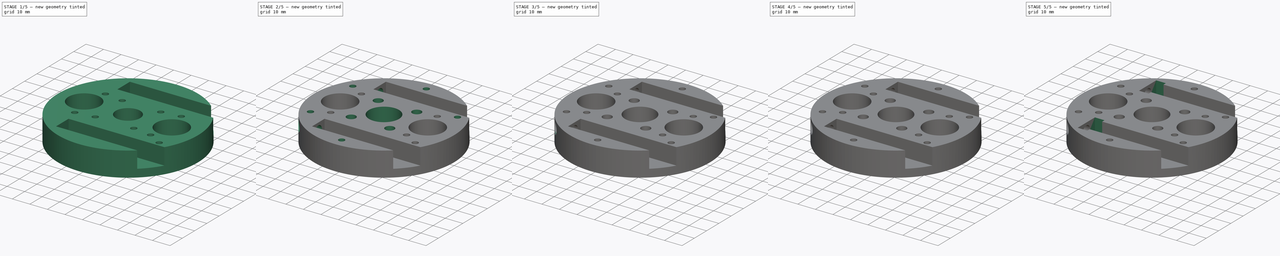
[diagram: build sequence overview — one tinted view per stage of 5, left to right]
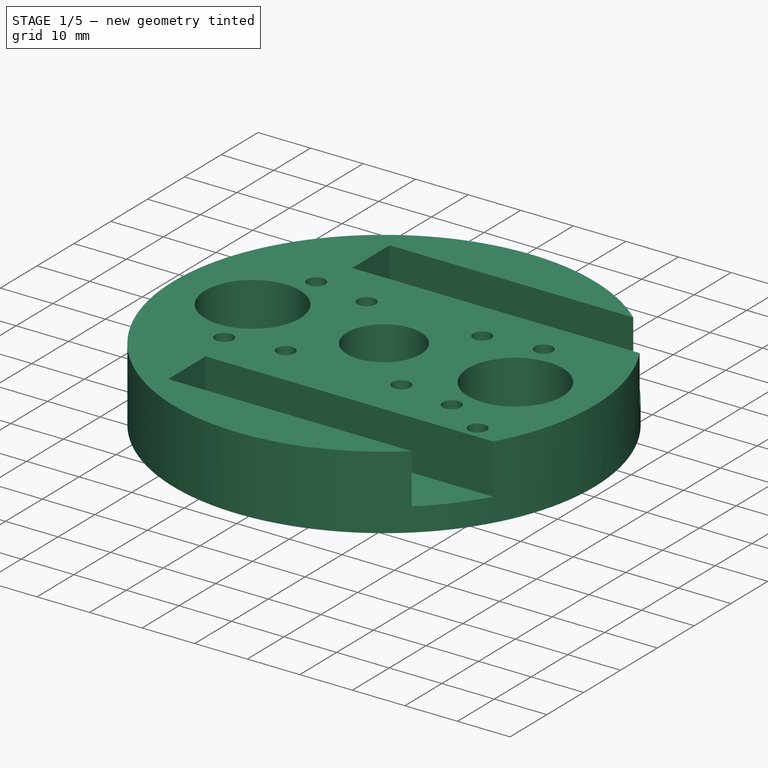
[diagram: stage 1 of 5 — iso view after this stage's code; geometry added in this stage tinted green]
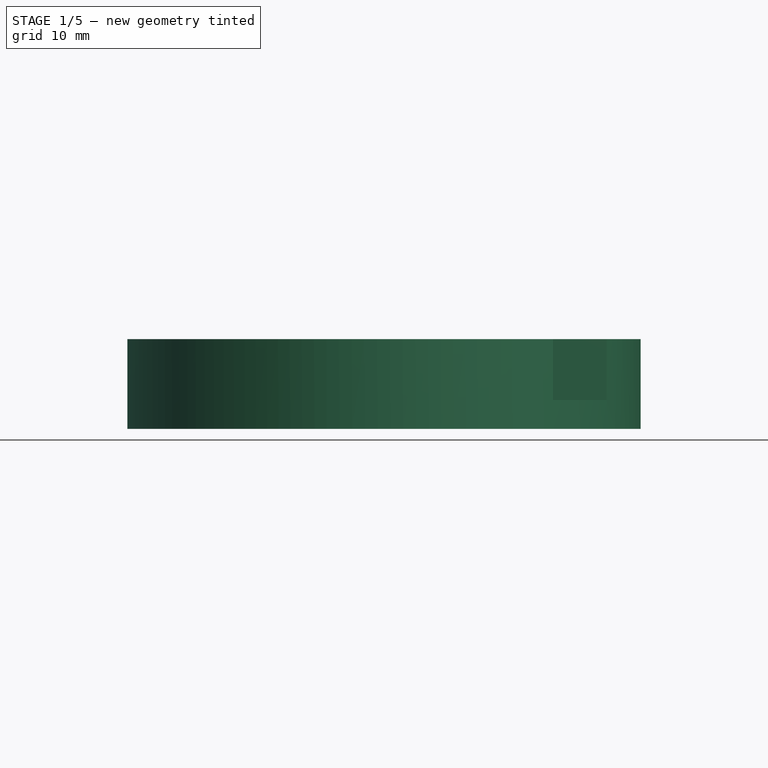
[diagram: stage 1 of 5 — front view after this stage's code; geometry added in this stage tinted green]
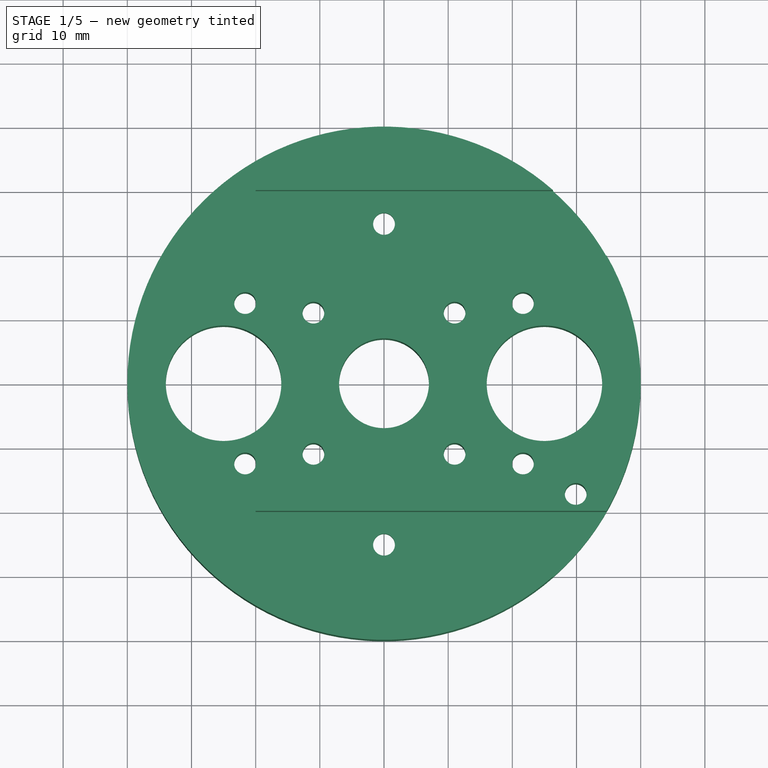
[diagram: stage 1 of 5 — top view after this stage's code; geometry added in this stage tinted green]
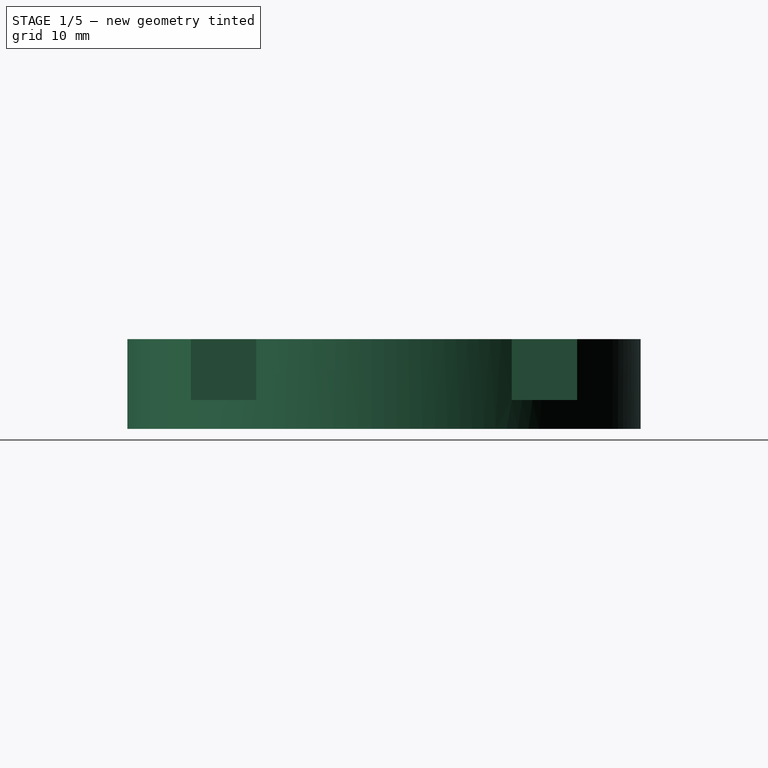
[diagram: stage 1 of 5 — right view after this stage's code; geometry added in this stage tinted green]
FCSTD DOCUMENT  (FreeCAD 0.16R6705 (Git))
Label: LegMount
License: All rights reserved
LicenseURL: http://en.wikipedia.org/wiki/All_rights_reserved
objects: PartDesign::Chamfer×12, Sketcher::SketchObject×8, PartDesign::Pocket×7, PartDesign::PolarPattern×2, PartDesign::Fillet×2, PartDesign::Pad×1
note: 40 computed .brp shape members not serialized (recipe doc carries the construction recipe); baked Part::Feature solids carry a one-line shape summary decoded from their .brp

FEATURE [Sketcher::SketchObject] Sketch020
  Placement = pos=(0,0,0) rot=(1,0,0;3.14159rad)
  sketch-geometry (14):
    g0: Circle [constr] CenterX=0 CenterY=0 CenterZ=0 NormalX=0 NormalY=0 NormalZ=1 Radius=25
    g1: Circle CenterX=0 CenterY=0 CenterZ=0 NormalX=0 NormalY=0 NormalZ=1 Radius=7
    g2: Circle [constr] CenterX=0 CenterY=0 CenterZ=0 NormalX=0 NormalY=0 NormalZ=1 Radius=40
    g3: Circle CenterX=0 CenterY=0 CenterZ=0 NormalX=0 NormalY=0 NormalZ=1 Radius=40
    g4: LineSegment [constr] StartX=-11 StartY=11 StartZ=0 EndX=11 EndY=11 EndZ=0
    g5: LineSegment [constr] StartX=11 StartY=11 StartZ=0 EndX=11 EndY=-11 EndZ=0
    g6: LineSegment [constr] StartX=11 StartY=-11 StartZ=0 EndX=-11 EndY=-11 EndZ=0
    g7: LineSegment [constr] StartX=-11 StartY=-11 StartZ=0 EndX=-11 EndY=11 EndZ=0
    g8: Circle CenterX=-11 CenterY=11 CenterZ=0 NormalX=0 NormalY=0 NormalZ=1 Radius=1.7
    g9: Circle CenterX=11 CenterY=11 CenterZ=0 NormalX=0 NormalY=0 NormalZ=1 Radius=1.7
    g10: Circle CenterX=11 CenterY=-11 CenterZ=0 NormalX=0 NormalY=0 NormalZ=1 Radius=1.7
    g11: Circle CenterX=-11 CenterY=-11 CenterZ=0 NormalX=0 NormalY=0 NormalZ=1 Radius=1.7
    g12: Circle CenterX=-25 CenterY=0 CenterZ=0 NormalX=0 NormalY=0 NormalZ=1 Radius=9
    g13: Circle CenterX=25 CenterY=0 CenterZ=0 NormalX=0 NormalY=0 NormalZ=1 Radius=9
  constraints (32):
    c: Coincident(g0,g-1)
    c: Coincident(g1,g-1)
    c: Radius(g1) = 7
    c: Radius(g0) = 25
    c: Coincident(g2,g-1)
    c: Radius(g2) = 40
    c: Coincident(g3,g-1)
    c: Radius(g3) = 40
    c: Coincident(g4,g5)
    c: Coincident(g5,g6)
    c: Coincident(g6,g7)
    c: Coincident(g7,g4)
    c: Horizontal(g4)
    c: Horizontal(g6)
    c: Vertical(g5)
    c: Vertical(g7)
    c: Symmetric(g6,g4,g-1)
    c: Equal(g7,g4)
    c: DistanceX(g4,g4) = 22
    c: Coincident(g8,g4)
    c: Coincident(g9,g4)
    c: Coincident(g10,g5)
    c: Coincident(g11,g6)
    c: Radius(g11) = 1.7
    c: Equal(g11,g10)
    c: Equal(g11,g9)
    c: Equal(g11,g8)
    c: Symmetric(g13,g12,g-2)
    c: Radius(g12) = 9
    c: Equal(g12,g13)
    c: PointOnObject(g12,g-1)
    c: DistanceX(g12,g13) = 50
FEATURE [PartDesign::Pad] Pad
  Length = 14
  Length2 = 100
  Placement = pos=(0,0,0) rot=(1,0,0;3.14159rad)
  Sketch = -> Sketch020
  Type = 0
FEATURE [Sketcher::SketchObject] Sketch  label="RodRecess"
  Support = -> Pad [Face9]
  sketch-geometry (12):
    g0: LineSegment StartX=-20 StartY=30.1 StartZ=0 EndX=40 EndY=30.1 EndZ=0
    g1: LineSegment StartX=40 StartY=30.1 StartZ=0 EndX=40 EndY=19.9 EndZ=0
    g2: LineSegment StartX=40 StartY=19.9 StartZ=0 EndX=-20 EndY=19.9 EndZ=0
    g3: LineSegment StartX=-20 StartY=19.9 StartZ=0 EndX=-20 EndY=30.1 EndZ=0
    g4: LineSegment StartX=-20 StartY=-19.9 StartZ=0 EndX=40 EndY=-19.9 EndZ=0
    g5: LineSegment StartX=40 StartY=-19.9 StartZ=0 EndX=40 EndY=-30.1 EndZ=0
    g6: LineSegment StartX=40 StartY=-30.1 StartZ=0 EndX=-20 EndY=-30.1 EndZ=0
    g7: LineSegment StartX=-20 StartY=-30.1 StartZ=0 EndX=-20 EndY=-19.9 EndZ=0
    g8: LineSegment [constr] StartX=-20 StartY=19.9 StartZ=0 EndX=-20 EndY=-19.9 EndZ=0
    g9: LineSegment [constr] StartX=40 StartY=19.9 StartZ=0 EndX=40 EndY=-19.9 EndZ=0
    g10: GeomPoint [constr] X=-20 Y=25 Z=0
    g11: GeomPoint [constr] X=-20 Y=-25 Z=0
  constraints (30):
    c: Coincident(g0,g1)
    c: Coincident(g1,g2)
    c: Coincident(g2,g3)
    c: Coincident(g3,g0)
    c: Horizontal(g0)
    c: Horizontal(g2)
    c: Vertical(g1)
    c: Vertical(g3)
    c: Coincident(g4,g5)
    c: Coincident(g5,g6)
    c: Coincident(g6,g7)
    c: Coincident(g7,g4)
    c: Horizontal(g4)
    c: Horizontal(g6)
    c: Vertical(g5)
    c: Vertical(g7)
    c: Coincident(g8,g2)
    c: Coincident(g8,g4)
    c: Vertical(g8)
    c: Coincident(g9,g1)
    c: Coincident(g9,g4)
    c: Vertical(g9)
    c: DistanceY(g2,g0) = 10.2
    c: DistanceX(g0,g0) = 60
    c: Symmetric(g0,g5,g-1)
    c: Symmetric(g1,g4,g-1)
    c: DistanceX(g6,g-1) = 20
    c: Symmetric(g0,g2,g10)
    c: Symmetric(g4,g6,g11)
    c: DistanceY(g11,g10) = 50
FEATURE [PartDesign::Pocket] Pocket
  Length = 9.5
  Placement = pos=(0,0,0) rot=(1,0,0;3.14159rad)
  Sketch = -> Sketch
  Type = 0
FEATURE [Sketcher::SketchObject] Sketch021  label="InnerMountingHole"
  Placement = pos=(0,0,-14) rot=(1,0,0;3.14159rad)
  Support = -> Pocket [Face9]
  sketch-geometry (3):
    g0: Circle CenterX=21.6506 CenterY=12.5 CenterZ=0 NormalX=0 NormalY=0 NormalZ=1 Radius=1.7
    g1: Circle [constr] CenterX=0 CenterY=0 CenterZ=0 NormalX=0 NormalY=0 NormalZ=1 Radius=25
    g2: LineSegment [constr] StartX=0 StartY=0 StartZ=0 EndX=21.6506 EndY=12.5 EndZ=0
  constraints (7):
    c: Radius(g0) = 1.7
    c: Radius(g1) = 25
    c: Coincident(g1,g-1)
    c: PointOnObject(g0,g1)
    c: Coincident(g2,g-1)
    c: Coincident(g2,g0)
    c: Angle(g-1,g2) = 0.523599
FEATURE [PartDesign::Pocket] Pocket001
  Length = 5
  Placement = pos=(0,0,0) rot=(1,0,0;3.14159rad)
  Sketch = -> Sketch021
  Type = 1
FEATURE [PartDesign::PolarPattern] PolarPattern
  Angle = 360
  Axis = -> Sketch021 [N_Axis]
  Occurrences = 6
  Originals = -> [Pocket001]
  Placement = pos=(0,0,0) rot=(1,0,0;3.14159rad)
FEATURE [Sketcher::SketchObject] Sketch022  label="OuterMountingHoles"
  Placement = pos=(0,0,-14) rot=(1,0,0;3.14159rad)
  Support = -> PolarPattern [Face9]
  sketch-geometry (5):
    g0: Circle CenterX=29.8779 CenterY=17.25 CenterZ=0 NormalX=0 NormalY=0 NormalZ=1 Radius=1.7
    g1: Circle [constr] CenterX=0 CenterY=0 CenterZ=0 NormalX=0 NormalY=0 NormalZ=1 Radius=38.6
    g2: GeomPoint [constr] X=38.6 Y=0 Z=0
    g3: Circle [constr] CenterX=0 CenterY=0 CenterZ=0 NormalX=0 NormalY=0 NormalZ=1 Radius=30
    g4: LineSegment [constr] StartX=0 StartY=0 StartZ=0 EndX=29.8779 EndY=17.25 EndZ=0
  constraints (11):
    c: Radius(g0) = 1.7
    c: Coincident(g1,g-1)
    c: Radius(g1) = 38.6
    c: PointOnObject(g2,g-1)
    c: PointOnObject(g2,g1)
    c: Coincident(g3,g-1)
    c: Radius(g3) = 30
    c: Coincident(g4,g-1)
    c: Coincident(g4,g0)
    c: Distance(g4) = 34.5
    c: Angle(g-1,g4) = 0.523599
FEATURE [PartDesign::Pocket] Pocket002
  Length = 5
  Placement = pos=(0,0,0) rot=(1,0,0;3.14159rad)
  Sketch = -> Sketch022
  Type = 1
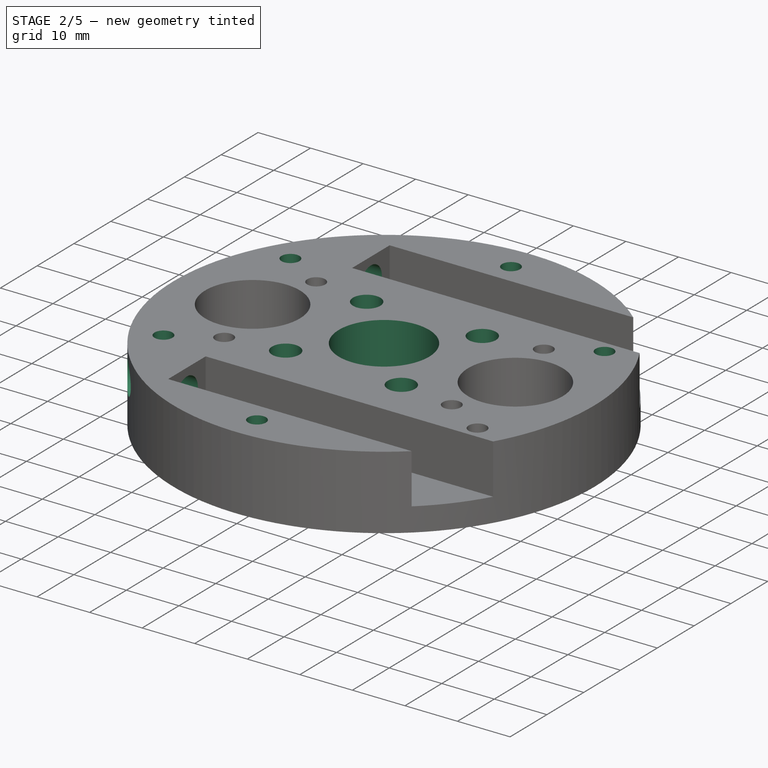
[diagram: stage 2 of 5 — iso view after this stage's code; geometry added in this stage tinted green]
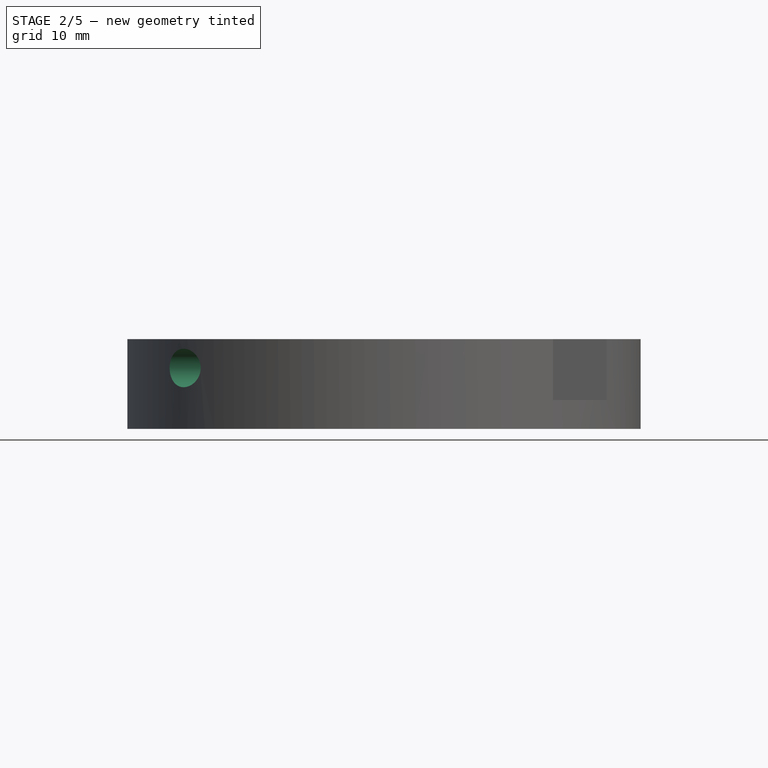
[diagram: stage 2 of 5 — front view after this stage's code; geometry added in this stage tinted green]
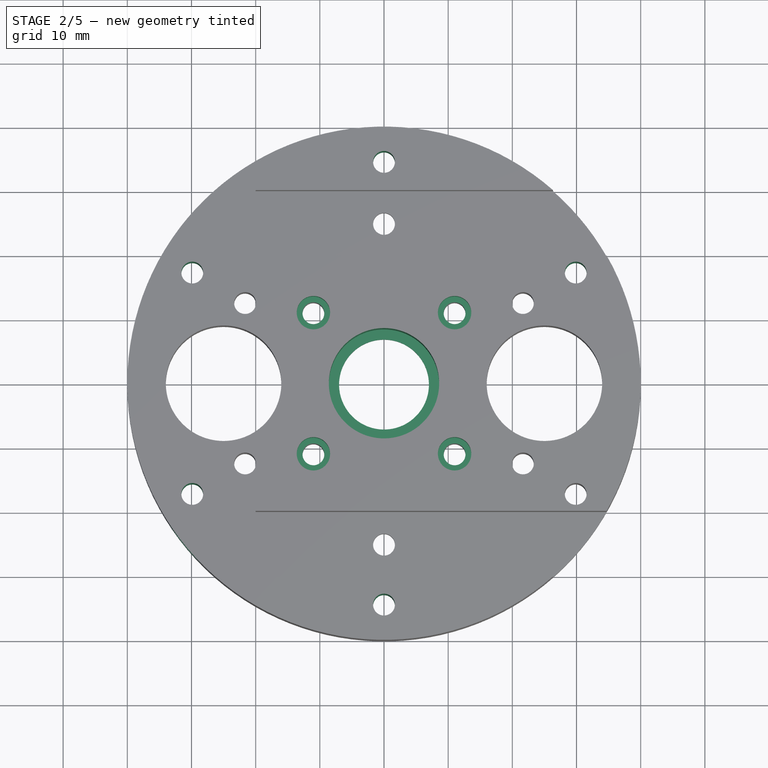
[diagram: stage 2 of 5 — top view after this stage's code; geometry added in this stage tinted green]
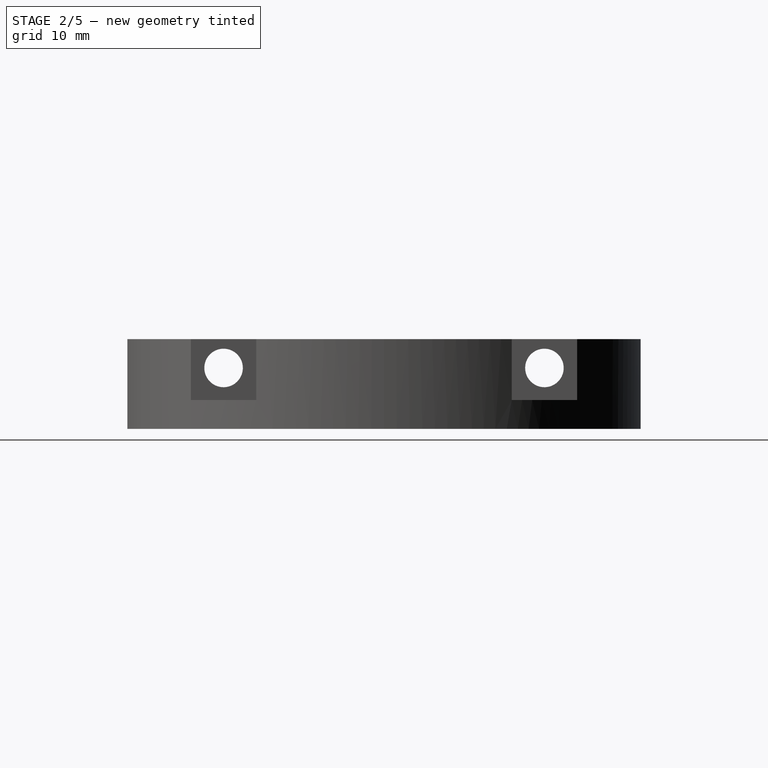
[diagram: stage 2 of 5 — right view after this stage's code; geometry added in this stage tinted green]
FEATURE [PartDesign::PolarPattern] PolarPattern001  label="FinalBeforeChamfer"
  Angle = 360
  Axis = -> Sketch022 [N_Axis]
  Occurrences = 6
  Originals = -> [Pocket002]
  Placement = pos=(0,0,0) rot=(1,0,0;3.14159rad)
FEATURE [Sketcher::SketchObject] Sketch023
  Support = -> PolarPattern001 [Face2]
  sketch-geometry (1):
    g0: Circle CenterX=0 CenterY=0 CenterZ=0 NormalX=0 NormalY=0 NormalZ=1 Radius=8.6
  constraints (2):
    c: Coincident(g0,g-1)
    c: Radius(g0) = 8.6
FEATURE [PartDesign::Pocket] Pocket003
  Length = 12.5
  Placement = pos=(0,0,0) rot=(1,0,0;3.14159rad)
  Sketch = -> Sketch023
  Type = 0
FEATURE [Sketcher::SketchObject] Sketch024
  Placement = pos=(-20,0,0) rot=(0.57735,-0.57735,0.57735;4.18879rad)
  Support = -> Pocket003 [Face10]
  sketch-geometry (2):
    g0: Circle CenterX=-25 CenterY=4.5 CenterZ=0 NormalX=0 NormalY=0 NormalZ=1 Radius=3
    g1: Circle CenterX=25 CenterY=4.5 CenterZ=0 NormalX=0 NormalY=0 NormalZ=1 Radius=3
  constraints (5):
    c: Symmetric(g0,g1,g-2)
    c: DistanceX(g0,g1) = 50
    c: Radius(g0) = 3
    c: Equal(g0,g1)
    c: DistanceY(g-1,g0) = 4.5
FEATURE [PartDesign::Pocket] Pocket004
  Length = 7
  Placement = pos=(0,0,0) rot=(1,0,0;3.14159rad)
  Sketch = -> Sketch024
  Type = 1
FEATURE [Sketcher::SketchObject] Sketch025
  Support = -> Pocket004 [Face3]
  sketch-geometry (8):
    g0: LineSegment [constr] StartX=-11 StartY=11 StartZ=0 EndX=11 EndY=11 EndZ=0
    g1: LineSegment [constr] StartX=11 StartY=11 StartZ=0 EndX=11 EndY=-11 EndZ=0
    g2: LineSegment [constr] StartX=11 StartY=-11 StartZ=0 EndX=-11 EndY=-11 EndZ=0
    g3: LineSegment [constr] StartX=-11 StartY=-11 StartZ=0 EndX=-11 EndY=11 EndZ=0
    g4: Circle CenterX=-11 CenterY=11 CenterZ=0 NormalX=0 NormalY=0 NormalZ=1 Radius=2.6
    g5: Circle CenterX=11 CenterY=11 CenterZ=0 NormalX=0 NormalY=0 NormalZ=1 Radius=2.6
    g6: Circle CenterX=11 CenterY=-11 CenterZ=0 NormalX=0 NormalY=0 NormalZ=1 Radius=2.6
    g7: Circle CenterX=-11 CenterY=-11 CenterZ=0 NormalX=0 NormalY=0 NormalZ=1 Radius=2.6
  constraints (19):
    c: Coincident(g0,g1)
    c: Coincident(g1,g2)
    c: Coincident(g2,g3)
    c: Coincident(g3,g0)
    c: Horizontal(g0)
    c: Horizontal(g2)
    c: Vertical(g1)
    c: Vertical(g3)
    c: Symmetric(g0,g2,g-1)
    c: Equal(g0,g1)
    c: DistanceX(g0,g0) = 22
    c: Coincident(g4,g0)
    c: Coincident(g5,g0)
    c: Coincident(g6,g1)
    c: Coincident(g7,g2)
    c: Radius(g7) = 2.6
    c: Equal(g7,g4)
    c: Equal(g7,g5)
    c: Equal(g7,g6)
FEATURE [PartDesign::Pocket] Pocket005
  Length = 5
  Placement = pos=(0,0,0) rot=(1,0,0;3.14159rad)
  Sketch = -> Sketch025
  Type = 0
FEATURE [PartDesign::Fillet] Fillet
  Base = -> Pocket005 [Edge12]
  Placement = pos=(0,0,0) rot=(1,0,0;3.14159rad)
  Radius = 1
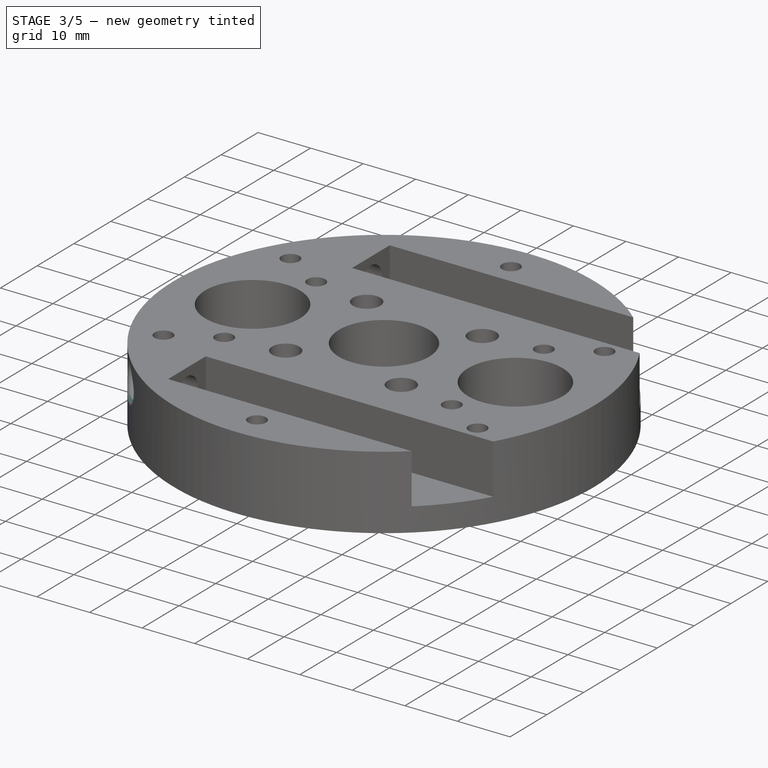
[diagram: stage 3 of 5 — iso view after this stage's code; geometry added in this stage tinted green]
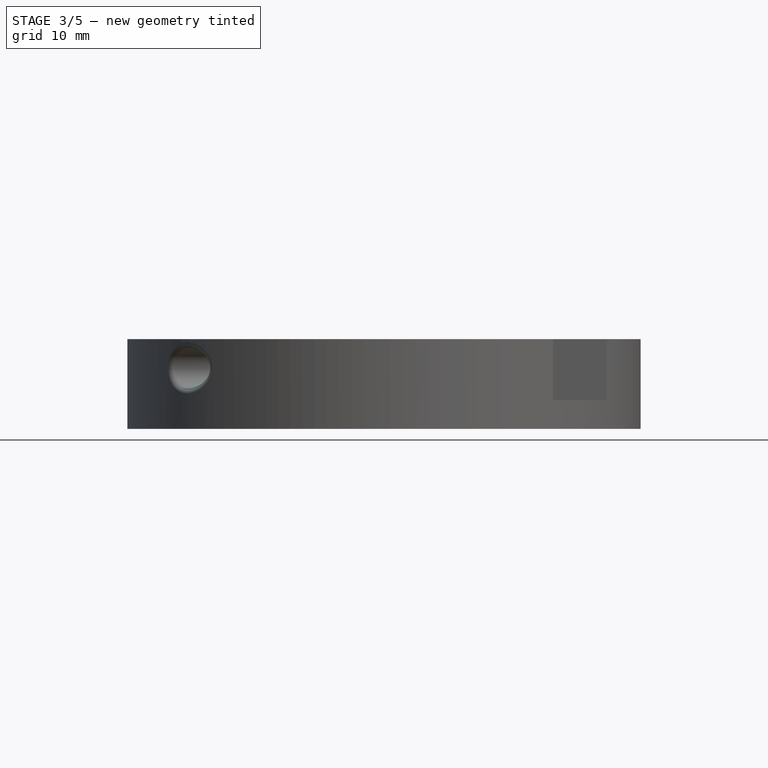
[diagram: stage 3 of 5 — front view after this stage's code; geometry added in this stage tinted green]
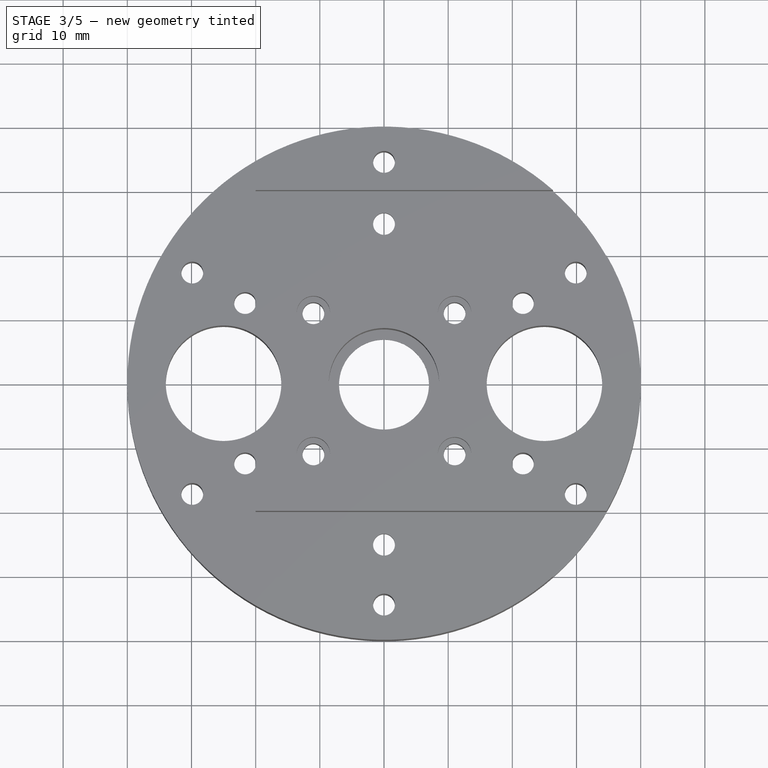
[diagram: stage 3 of 5 — top view after this stage's code; geometry added in this stage tinted green]
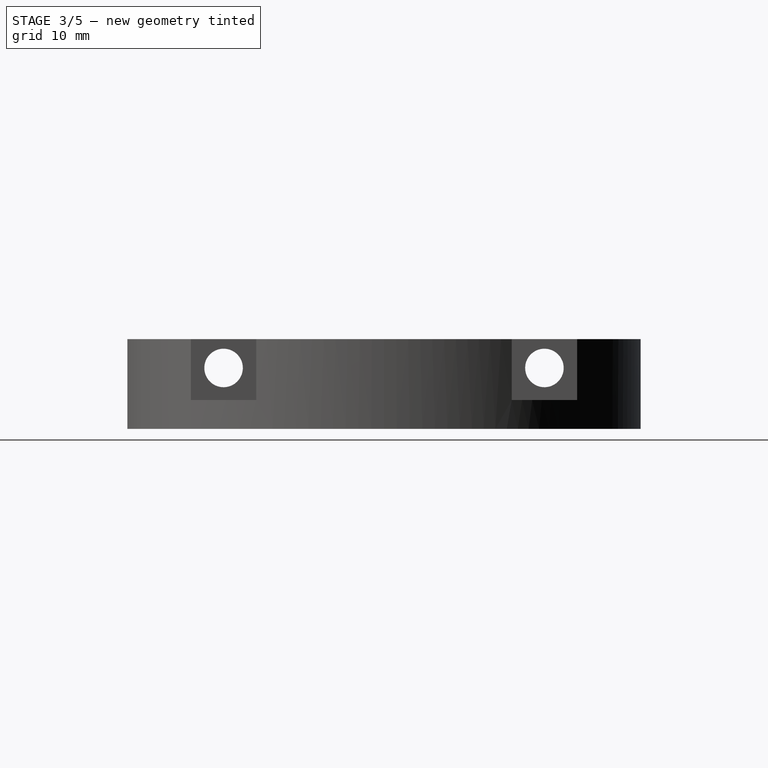
[diagram: stage 3 of 5 — right view after this stage's code; geometry added in this stage tinted green]
FEATURE [PartDesign::Fillet] Fillet001
  Base = -> Fillet [Edge13]
  Placement = pos=(0,0,0) rot=(1,0,0;3.14159rad)
  Radius = 1
FEATURE [PartDesign::Chamfer] Chamfer
  Base = -> Fillet001 [Edge19]
  Placement = pos=(0,0,0) rot=(1,0,0;3.14159rad)
  Size = 1.5
FEATURE [PartDesign::Chamfer] Chamfer001
  Base = -> Chamfer [Edge6]
  Placement = pos=(0,0,0) rot=(1,0,0;3.14159rad)
  Size = 1.5
FEATURE [PartDesign::Chamfer] Chamfer002
  Base = -> Chamfer001 [Edge14]
  Placement = pos=(0,0,0) rot=(1,0,0;3.14159rad)
  Size = 1.5
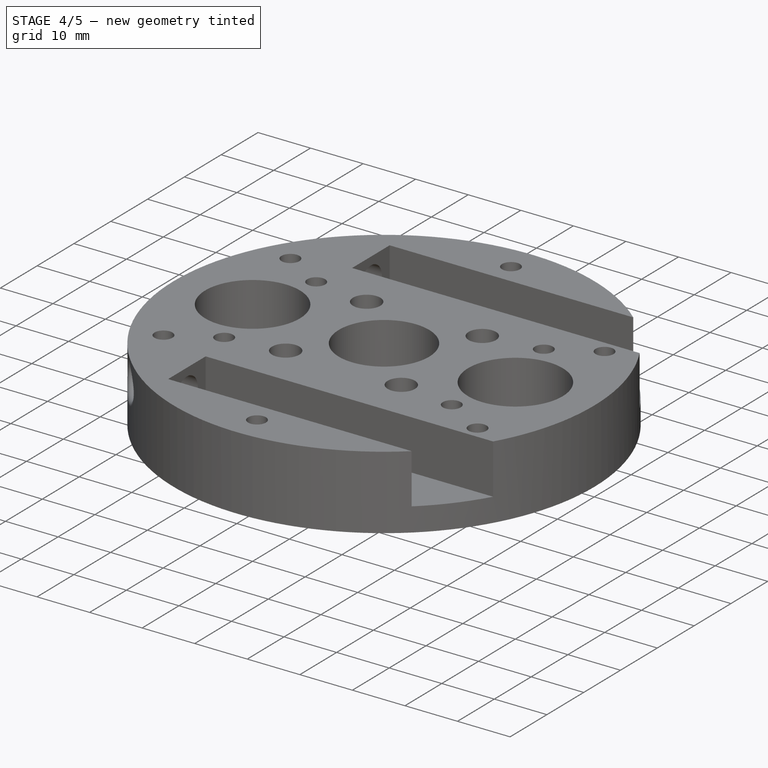
[diagram: stage 4 of 5 — iso view after this stage's code; geometry added in this stage tinted green]
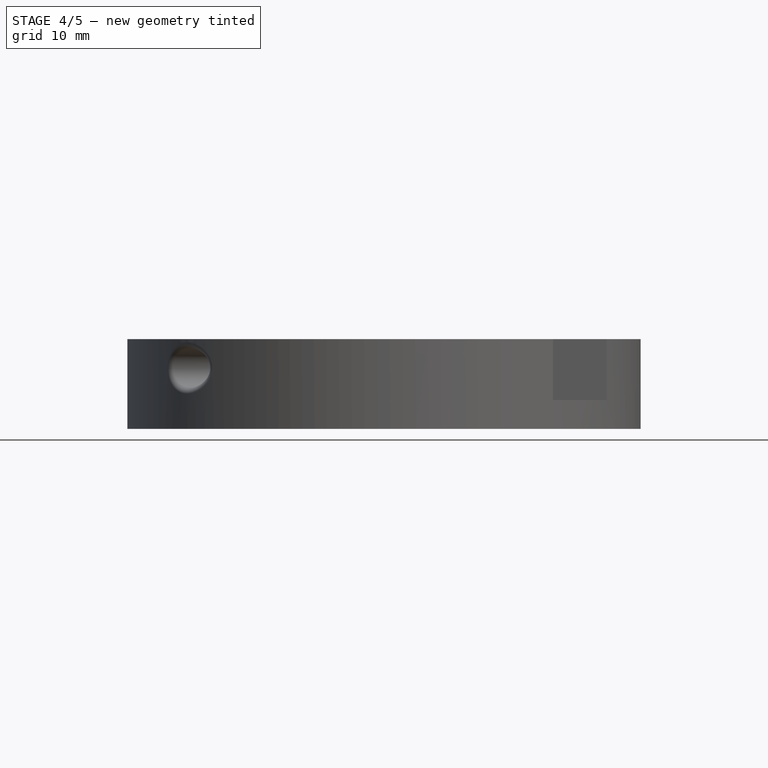
[diagram: stage 4 of 5 — front view after this stage's code; geometry added in this stage tinted green]
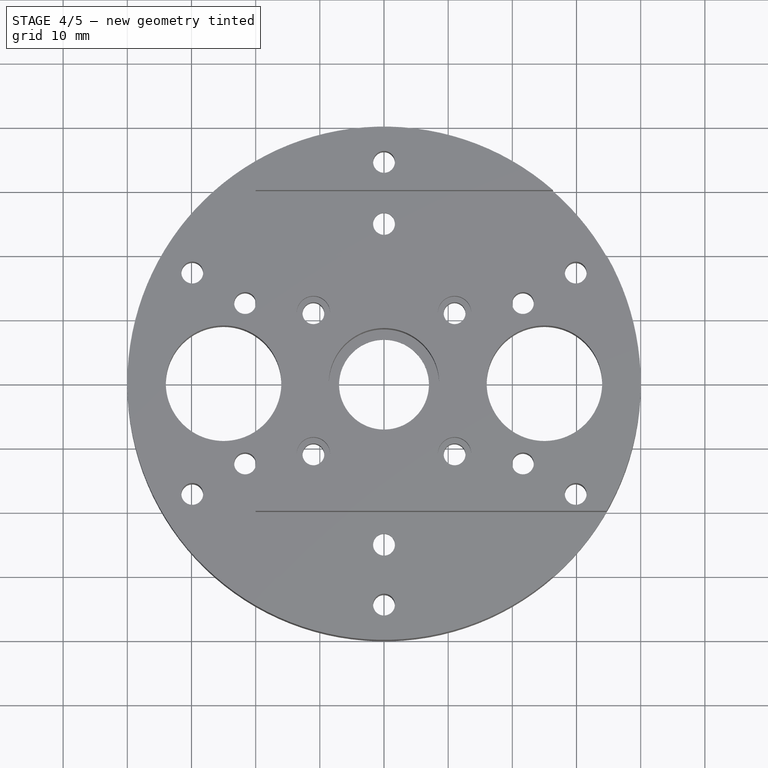
[diagram: stage 4 of 5 — top view after this stage's code; geometry added in this stage tinted green]
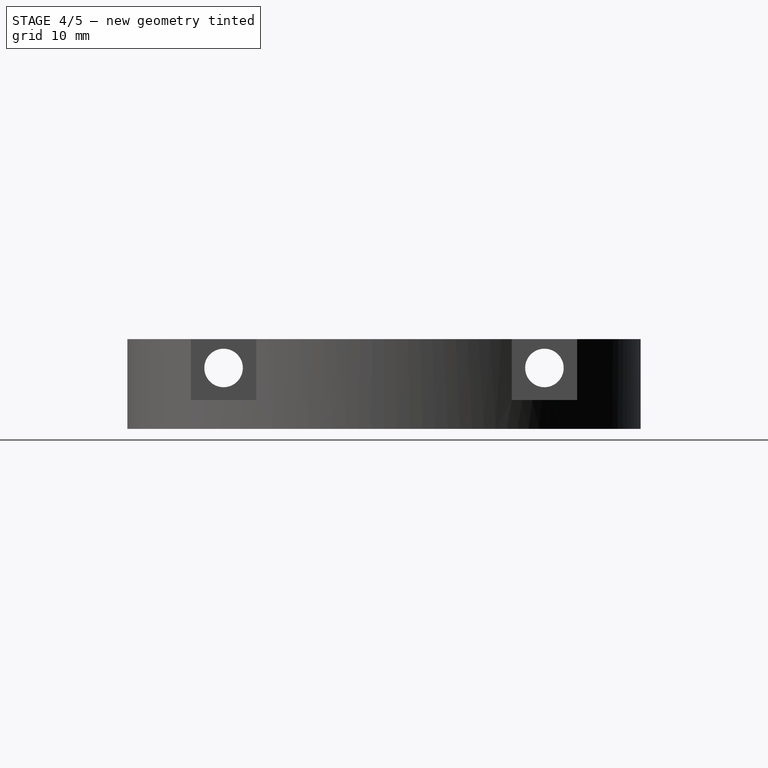
[diagram: stage 4 of 5 — right view after this stage's code; geometry added in this stage tinted green]
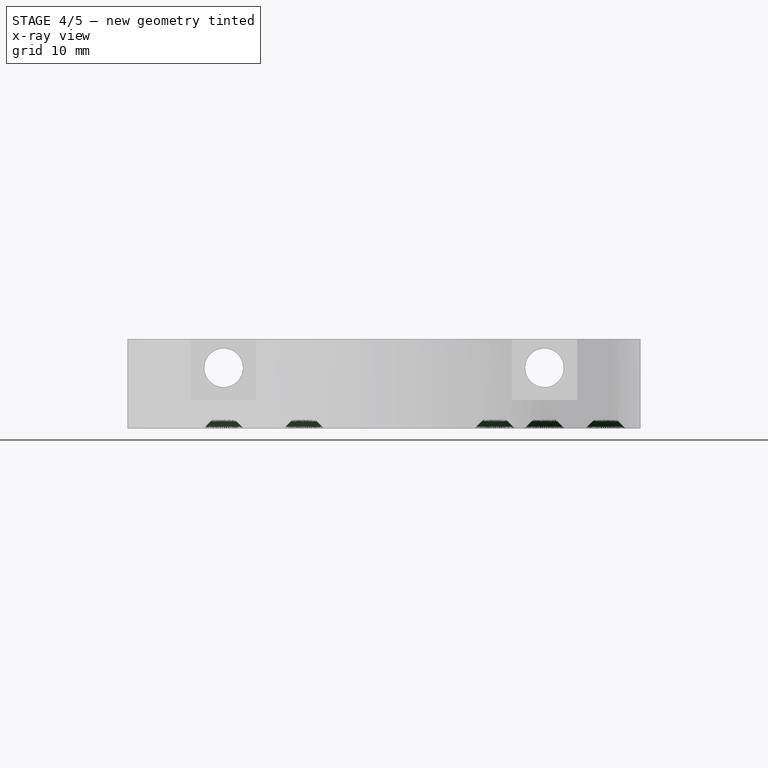
[diagram: stage 4 of 5 — x-ray composite at the right view; earlier geometry ghosted, this stage's added geometry solid]
FEATURE [PartDesign::Chamfer] Chamfer003
  Base = -> Chamfer002 [Edge15]
  Placement = pos=(0,0,0) rot=(1,0,0;3.14159rad)
  Size = 1.5
FEATURE [PartDesign::Chamfer] Chamfer004
  Base = -> Chamfer003 [Edge6]
  Placement = pos=(0,0,0) rot=(1,0,0;3.14159rad)
  Size = 1.5
FEATURE [PartDesign::Chamfer] Chamfer005
  Base = -> Chamfer004 [Edge13]
  Placement = pos=(0,0,0) rot=(1,0,0;3.14159rad)
  Size = 1.5
FEATURE [PartDesign::Chamfer] Chamfer006
  Base = -> Chamfer005 [Edge13]
  Placement = pos=(0,0,0) rot=(1,0,0;3.14159rad)
  Size = 1.5
FEATURE [PartDesign::Chamfer] Chamfer007
  Base = -> Chamfer006 [Edge14]
  Placement = pos=(0,0,0) rot=(1,0,0;3.14159rad)
  Size = 1.5
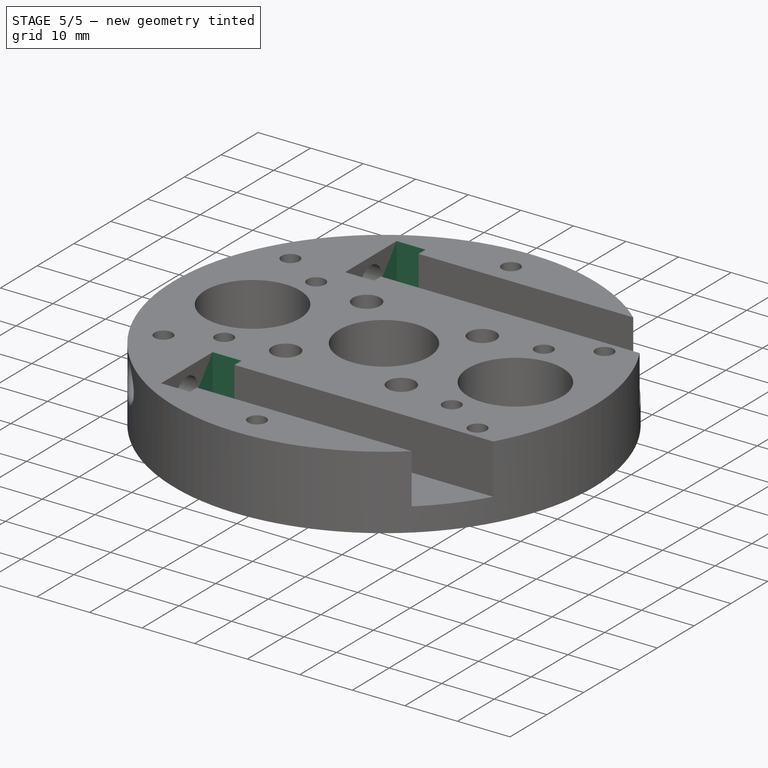
[diagram: stage 5 of 5 — iso view after this stage's code; geometry added in this stage tinted green]
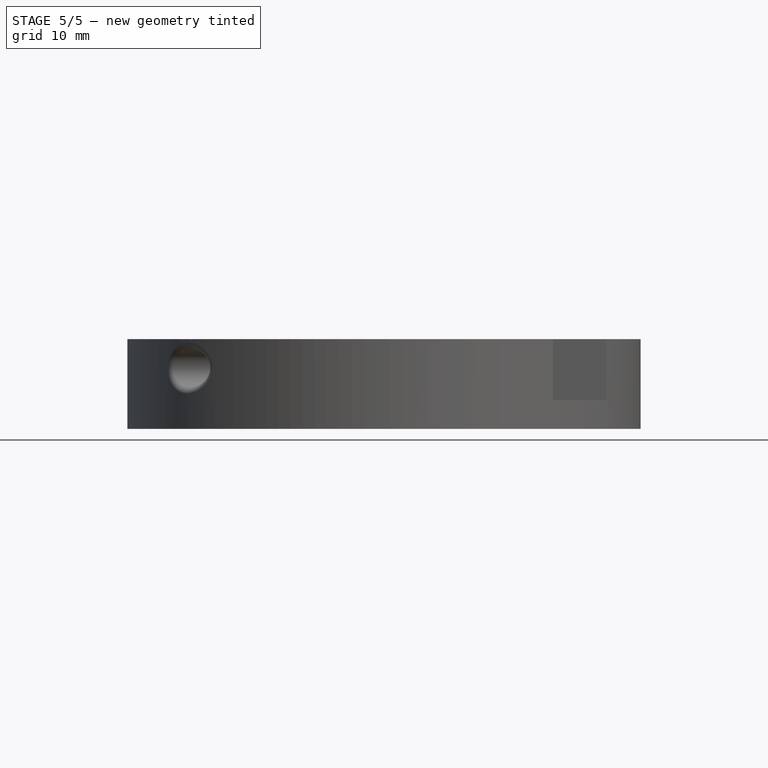
[diagram: stage 5 of 5 — front view after this stage's code; geometry added in this stage tinted green]
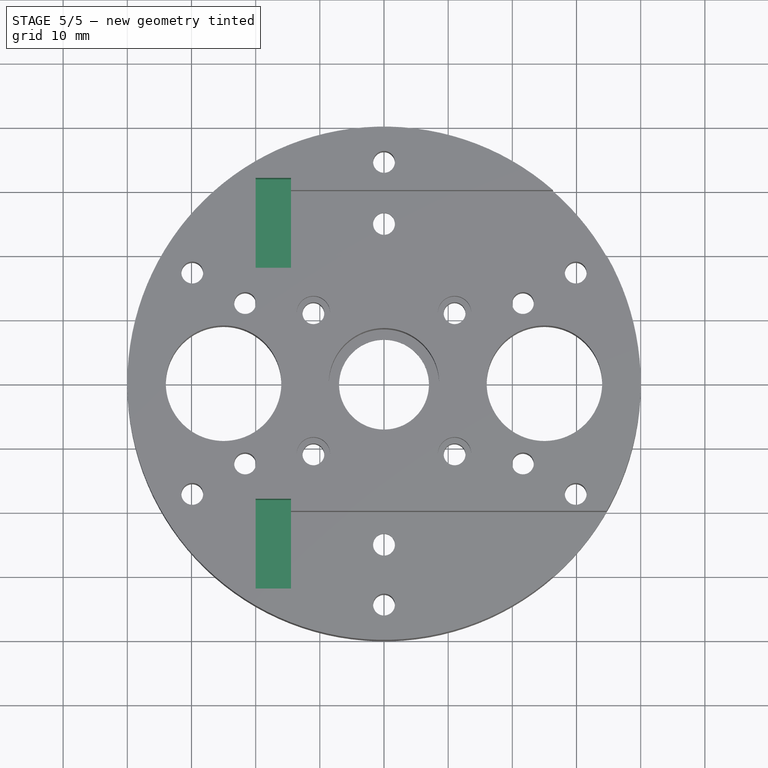
[diagram: stage 5 of 5 — top view after this stage's code; geometry added in this stage tinted green]
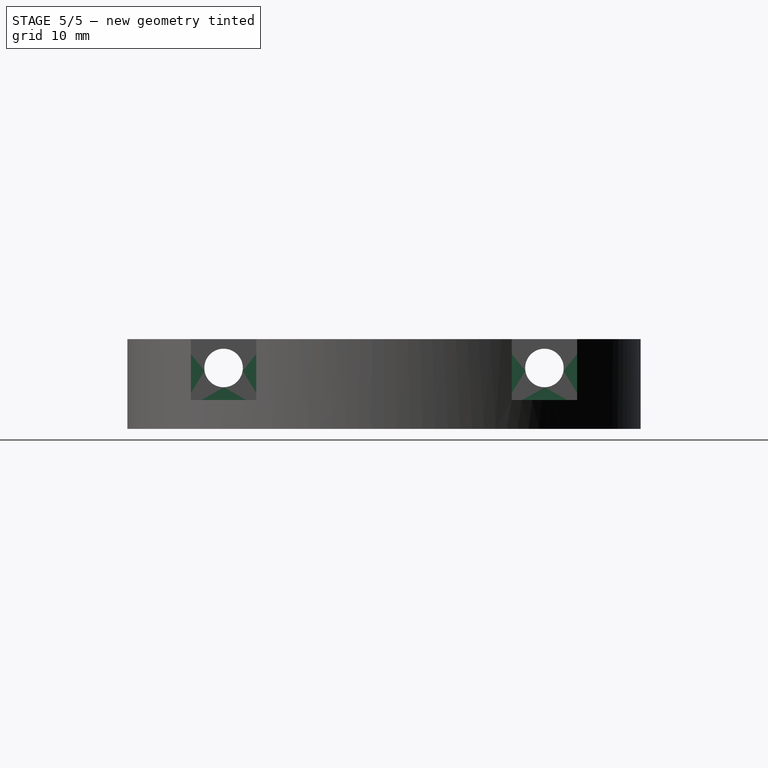
[diagram: stage 5 of 5 — right view after this stage's code; geometry added in this stage tinted green]
FEATURE [PartDesign::Chamfer] Chamfer008
  Base = -> Chamfer007 [Edge11]
  Placement = pos=(0,0,0) rot=(1,0,0;3.14159rad)
  Size = 1.5
FEATURE [PartDesign::Chamfer] Chamfer009
  Base = -> Chamfer008 [Edge20]
  Placement = pos=(0,0,0) rot=(1,0,0;3.14159rad)
  Size = 1.5
FEATURE [PartDesign::Chamfer] Chamfer010
  Base = -> Chamfer009 [Edge18]
  Placement = pos=(0,0,0) rot=(1,0,0;3.14159rad)
  Size = 1.5
FEATURE [PartDesign::Chamfer] Chamfer011
  Base = -> Chamfer010 [Edge17]
  Placement = pos=(0,0,0) rot=(1,0,0;3.14159rad)
  Size = 1.5
FEATURE [Sketcher::SketchObject] Sketch026
  Support = -> Chamfer011 [Face36]
  sketch-geometry (10):
    g0: LineSegment StartX=-20 StartY=32 StartZ=0 EndX=-14.5 EndY=32 EndZ=0
    g1: LineSegment StartX=-14.5 StartY=32 StartZ=0 EndX=-14.5 EndY=18 EndZ=0
    g2: LineSegment StartX=-14.5 StartY=18 StartZ=0 EndX=-20 EndY=18 EndZ=0
    g3: LineSegment StartX=-20 StartY=18 StartZ=0 EndX=-20 EndY=32 EndZ=0
    g4: LineSegment StartX=-20 StartY=-18 StartZ=0 EndX=-14.5 EndY=-18 EndZ=0
    g5: LineSegment StartX=-14.5 StartY=-18 StartZ=0 EndX=-14.5 EndY=-32 EndZ=0
    g6: LineSegment StartX=-14.5 StartY=-32 StartZ=0 EndX=-20 EndY=-32 EndZ=0
    g7: LineSegment StartX=-20 StartY=-32 StartZ=0 EndX=-20 EndY=-18 EndZ=0
    g8: GeomPoint [constr] X=-14.5 Y=25 Z=0
    g9: GeomPoint [constr] X=-14.5 Y=-25 Z=0
  constraints (24):
    c: Coincident(g0,g1)
    c: Coincident(g1,g2)
    c: Coincident(g2,g3)
    c: Coincident(g3,g0)
    c: Horizontal(g0)
    c: Horizontal(g2)
    c: Vertical(g1)
    c: Vertical(g3)
    c: Coincident(g4,g5)
    c: Coincident(g5,g6)
    c: Coincident(g6,g7)
    c: Coincident(g7,g4)
    c: Horizontal(g4)
    c: Horizontal(g6)
    c: Vertical(g5)
    c: Vertical(g7)
    c: Symmetric(g4,g2,g-1)
    c: Symmetric(g5,g0,g-1)
    c: DistanceX(g0,g0) = 5.5
    c: DistanceX(g2,g-1) = 20
    c: DistanceY(g1,g0) = 14
    c: Symmetric(g5,g4,g9)
    c: Symmetric(g1,g0,g8)
    c: DistanceY(g9,g8) = 50
FEATURE [PartDesign::Pocket] Pocket006
  Length = 11.5
  Placement = pos=(0,0,0) rot=(1,0,0;3.14159rad)
  Sketch = -> Sketch026
  Type = 0
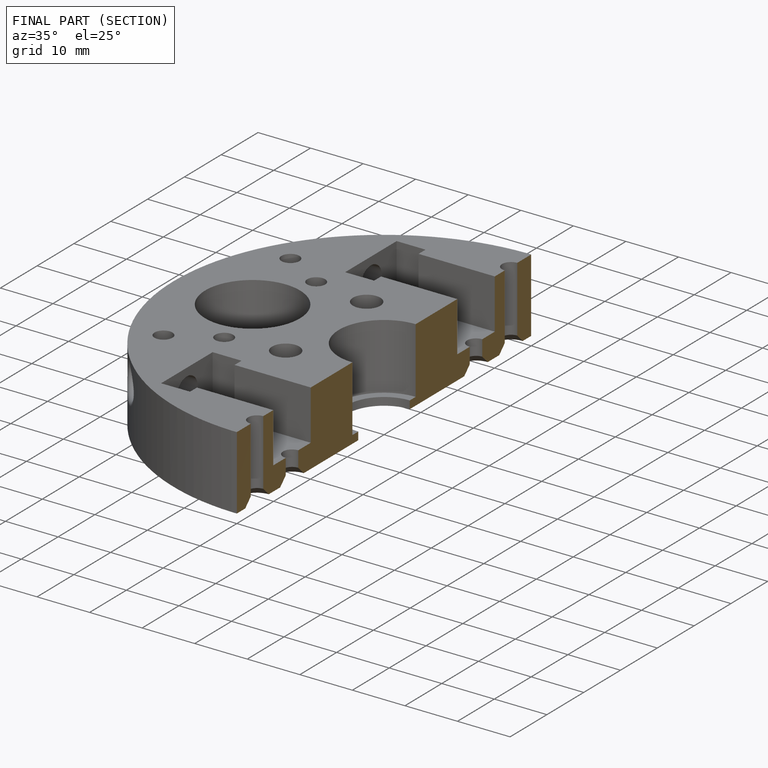
[diagram: finished part — half-section view (interior)]
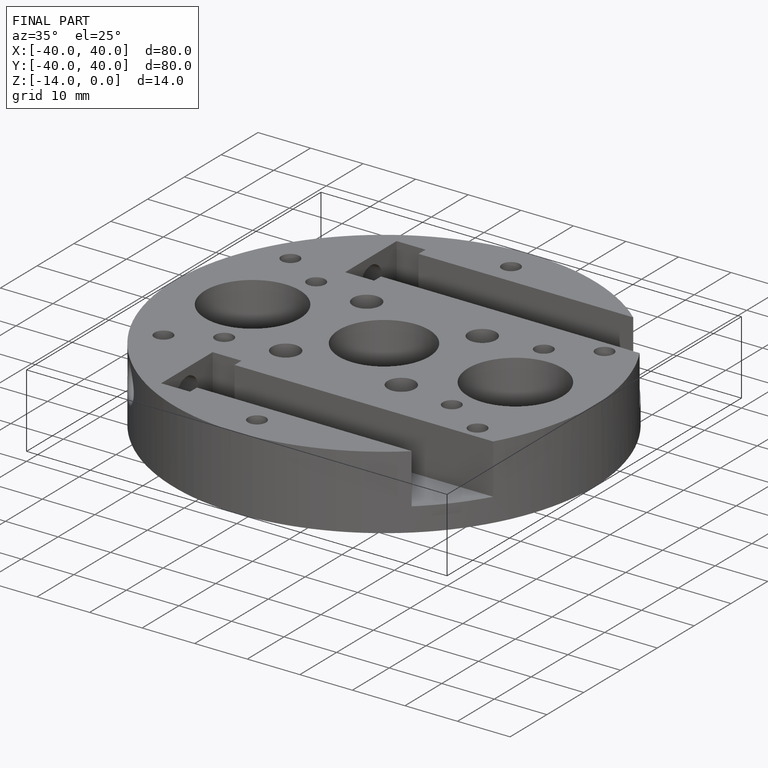
[diagram: finished part — iso view with bounding-box wireframe]
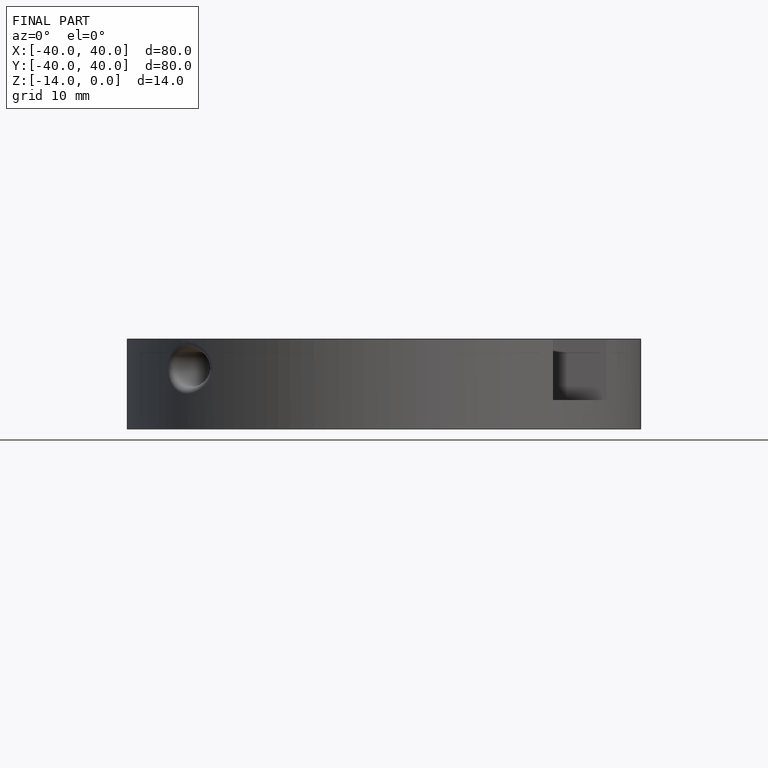
[diagram: finished part — front view with bounding-box wireframe]
